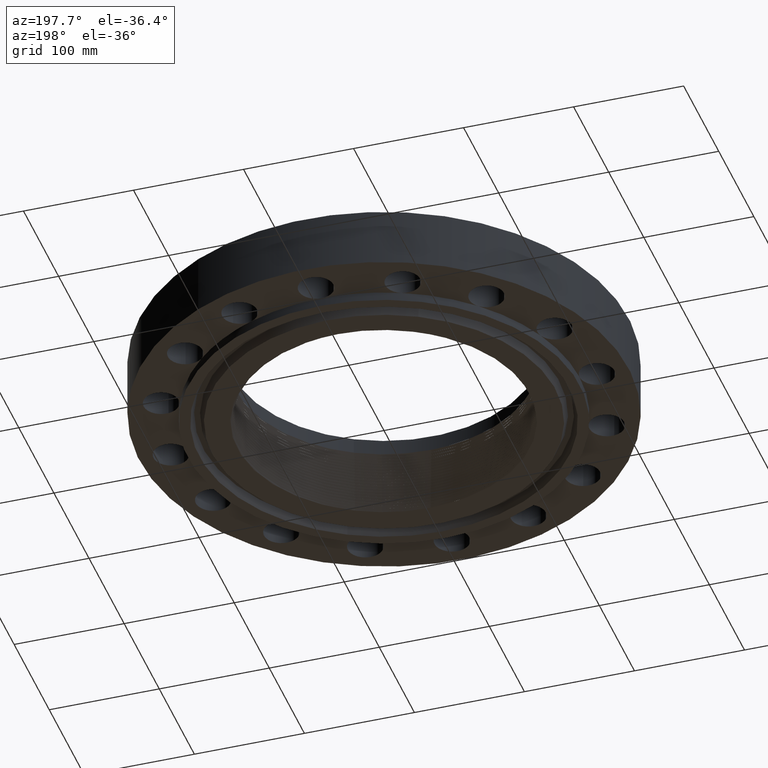
[diagram: clean part render]
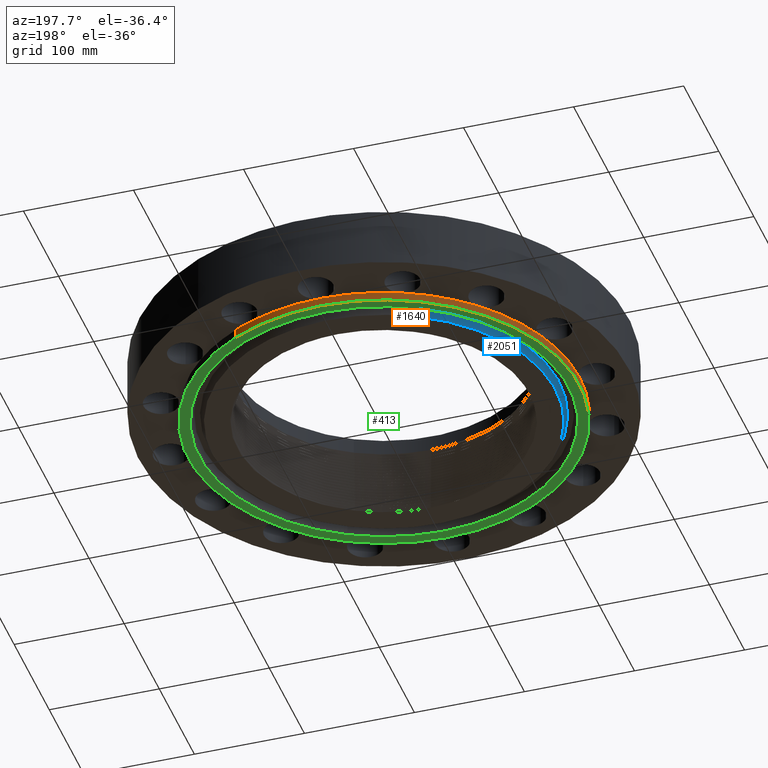
[diagram: same view with three faces highlighted in distinct colors, each labeled with its STEP entity id]
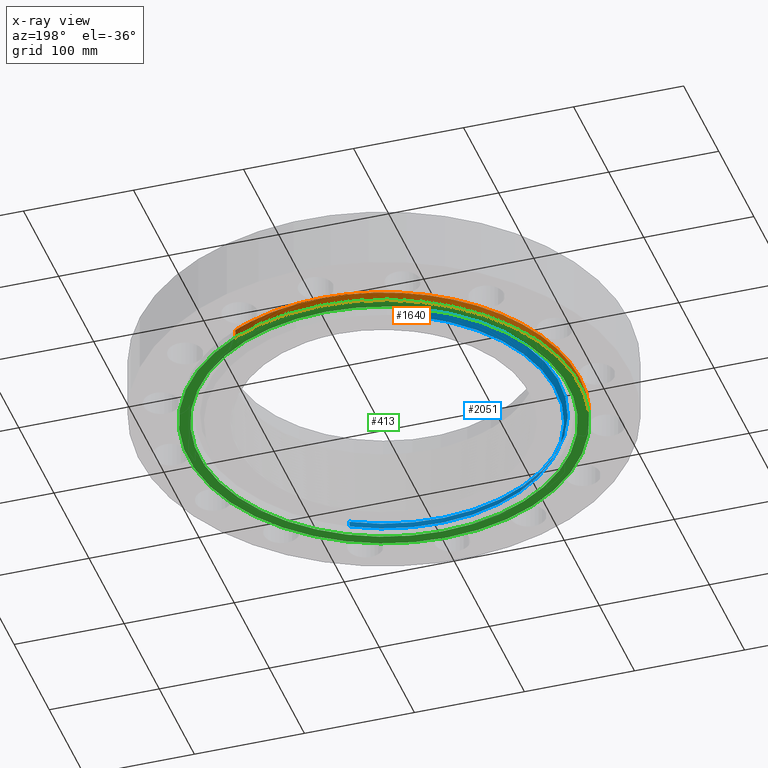
[diagram: x-ray of the same camera — body ghosted, the three highlighted faces saturated]
A machine part, auxiliary view with three faces highlighted in distinct colors.
The next image is the same camera in x-ray (body ghosted, the three faces saturated) — at least one of them is partly hidden behind the body in this view.
Their STEP definitions:

[orange] entity #1640 — the highlighted cylindrical surface (partial cylindrical patch) has radius 177.8 mm, axis along (0, 0, -1).
#388=AXIS2_PLACEMENT_3D('Circle Axis2P3D',#386,#387,$) ;
#1421=AXIS2_PLACEMENT_3D('Circle Axis2P3D',#1419,#1420,$) ;
#1426=AXIS2_PLACEMENT_3D('Circle Axis2P3D',#1424,#1425,$) ;
#1452=AXIS2_PLACEMENT_3D('Circle Axis2P3D',#1450,#1451,$) ;
#1457=AXIS2_PLACEMENT_3D('Circle Axis2P3D',#1455,#1456,$) ;
#1462=AXIS2_PLACEMENT_3D('Circle Axis2P3D',#1460,#1461,$) ;
#1467=AXIS2_PLACEMENT_3D('Circle Axis2P3D',#1465,#1466,$) ;
#1472=AXIS2_PLACEMENT_3D('Circle Axis2P3D',#1470,#1471,$) ;
#1477=AXIS2_PLACEMENT_3D('Circle Axis2P3D',#1475,#1476,$) ;
#1482=AXIS2_PLACEMENT_3D('Circle Axis2P3D',#1480,#1481,$) ;
#1599=AXIS2_PLACEMENT_3D('Cylinder Axis2P3D',#1596,#1597,#1598) ;
#381=CARTESIAN_POINT('Vertex',(3.35597877024,6.14307793326,-0.313000000001)) ;
#383=CARTESIAN_POINT('Vertex',(-3.35597877024,-6.14307793326,-0.313000000001)) ;
#386=CARTESIAN_POINT('Axis2P3D Location',(0.,0.,-0.313000000001)) ;
#562=CARTESIAN_POINT('Vertex',(-6.4671567276,-2.67878402657,0.)) ;
#822=CARTESIAN_POINT('Vertex',(-4.94974746833,4.94974746833,0.)) ;
#952=CARTESIAN_POINT('Vertex',(-4.94974746833,-4.94974746833,0.)) ;
#1017=CARTESIAN_POINT('Vertex',(-6.4671567276,2.67878402657,0.)) ;
#1082=CARTESIAN_POINT('Vertex',(-7.00000000003,-2.23792987641E-015,0.)) ;
#1147=CARTESIAN_POINT('Vertex',(2.67878402657,6.4671567276,0.)) ;
#1277=CARTESIAN_POINT('Vertex',(-2.67878402657,6.4671567276,0.)) ;
#1416=CARTESIAN_POINT('Vertex',(3.35597877024,6.14307793326,8.39223703654E-016)) ;
#1419=CARTESIAN_POINT('Axis2P3D Location',(0.,0.,0.)) ;
#1424=CARTESIAN_POINT('Axis2P3D Location',(0.,0.,0.)) ;
#1428=CARTESIAN_POINT('Vertex',(-3.00038465792E-015,7.00000000003,8.39223703654E-016)) ;
#1450=CARTESIAN_POINT('Axis2P3D Location',(0.,0.,0.)) ;
#1455=CARTESIAN_POINT('Axis2P3D Location',(0.,0.,0.)) ;
#1460=CARTESIAN_POINT('Axis2P3D Location',(0.,0.,0.)) ;
#1465=CARTESIAN_POINT('Axis2P3D Location',(0.,0.,0.)) ;
#1470=CARTESIAN_POINT('Axis2P3D Location',(0.,0.,0.)) ;
#1475=CARTESIAN_POINT('Axis2P3D Location',(0.,0.,0.)) ;
#1480=CARTESIAN_POINT('Axis2P3D Location',(0.,0.,0.)) ;
#1484=CARTESIAN_POINT('Vertex',(-3.35597877024,-6.14307793326,8.39223703654E-016)) ;
#1596=CARTESIAN_POINT('Axis2P3D Location',(0.,0.,1.28350000001)) ;
#1601=CARTESIAN_POINT('Line Origine',(3.35597877024,6.14307793326,-0.156500000001)) ;
#1606=CARTESIAN_POINT('Line Origine',(-3.35597877024,-6.14307793326,-0.156500000001)) ;
#387=DIRECTION('Axis2P3D Direction',(0.,0.,-0.0393700787402)) ;
#1420=DIRECTION('Axis2P3D Direction',(0.,0.,-0.0393700787402)) ;
#1425=DIRECTION('Axis2P3D Direction',(0.,0.,-0.0393700787402)) ;
#1451=DIRECTION('Axis2P3D Direction',(0.,0.,-0.0393700787402)) ;
#1456=DIRECTION('Axis2P3D Direction',(0.,0.,-0.0393700787402)) ;
#1461=DIRECTION('Axis2P3D Direction',(0.,0.,-0.0393700787402)) ;
#1466=DIRECTION('Axis2P3D Direction',(0.,0.,-0.0393700787402)) ;
#1471=DIRECTION('Axis2P3D Direction',(0.,0.,-0.0393700787402)) ;
#1476=DIRECTION('Axis2P3D Direction',(0.,0.,-0.0393700787402)) ;
#1481=DIRECTION('Axis2P3D Direction',(0.,0.,-0.0393700787402)) ;
#1597=DIRECTION('Axis2P3D Direction',(0.,0.,-0.0393700787402)) ;
#1598=DIRECTION('Axis2P3D XDirection',(-0.0188750212049,-0.0345504945626,0.)) ;
#1602=DIRECTION('Vector Direction',(0.,0.,-0.0393700787402)) ;
#1607=DIRECTION('Vector Direction',(0.,0.,-0.0393700787402)) ;
#1603=VECTOR('Line Direction',#1602,0.0393700787402) ;
#1608=VECTOR('Line Direction',#1607,0.0393700787402) ;
#1627=ORIENTED_EDGE('',*,*,#390,.F.) ;
#1628=ORIENTED_EDGE('',*,*,#1610,.T.) ;
#1629=ORIENTED_EDGE('',*,*,#1486,.T.) ;
#1630=ORIENTED_EDGE('',*,*,#1479,.T.) ;
#1631=ORIENTED_EDGE('',*,*,#1474,.T.) ;
#1632=ORIENTED_EDGE('',*,*,#1469,.T.) ;
#1633=ORIENTED_EDGE('',*,*,#1464,.T.) ;
#1634=ORIENTED_EDGE('',*,*,#1459,.T.) ;
#1635=ORIENTED_EDGE('',*,*,#1454,.T.) ;
#1636=ORIENTED_EDGE('',*,*,#1430,.T.) ;
#1637=ORIENTED_EDGE('',*,*,#1423,.T.) ;
#1638=ORIENTED_EDGE('',*,*,#1605,.F.) ;
#1640=ADVANCED_FACE('PartBody',(#1639),#1600,.T.) ;
#389=CIRCLE('generated circle',#388,7.00000000003) ;
#1422=CIRCLE('generated circle',#1421,7.00000000003) ;
#1427=CIRCLE('generated circle',#1426,7.00000000003) ;
#1453=CIRCLE('generated circle',#1452,7.00000000003) ;
#1458=CIRCLE('generated circle',#1457,7.00000000003) ;
#1463=CIRCLE('generated circle',#1462,7.00000000003) ;
#1468=CIRCLE('generated circle',#1467,7.00000000003) ;
#1473=CIRCLE('generated circle',#1472,7.00000000003) ;
#1478=CIRCLE('generated circle',#1477,7.00000000003) ;
#1483=CIRCLE('generated circle',#1482,7.00000000003) ;
#1600=CYLINDRICAL_SURFACE('generated cylinder',#1599,7.00000000003) ;
#390=EDGE_CURVE('',#384,#382,#389,.T.) ;
#1423=EDGE_CURVE('',#1148,#1417,#1422,.T.) ;
#1430=EDGE_CURVE('',#1429,#1148,#1427,.T.) ;
#1454=EDGE_CURVE('',#1278,#1429,#1453,.T.) ;
#1459=EDGE_CURVE('',#823,#1278,#1458,.T.) ;
#1464=EDGE_CURVE('',#1018,#823,#1463,.T.) ;
#1469=EDGE_CURVE('',#1083,#1018,#1468,.T.) ;
#1474=EDGE_CURVE('',#563,#1083,#1473,.T.) ;
#1479=EDGE_CURVE('',#953,#563,#1478,.T.) ;
#1486=EDGE_CURVE('',#1485,#953,#1483,.T.) ;
#1605=EDGE_CURVE('',#382,#1417,#1604,.F.) ;
#1610=EDGE_CURVE('',#384,#1485,#1609,.F.) ;
#1626=EDGE_LOOP('',(#1627,#1628,#1629,#1630,#1631,#1632,#1633,#1634,#1635,#1636,#1637,#1638)) ;
#1639=FACE_OUTER_BOUND('',#1626,.T.) ;
#1604=LINE('Line',#1601,#1603) ;
#1609=LINE('Line',#1606,#1608) ;
#382=VERTEX_POINT('',#381) ;
#384=VERTEX_POINT('',#383) ;
#563=VERTEX_POINT('',#562) ;
#823=VERTEX_POINT('',#822) ;
#953=VERTEX_POINT('',#952) ;
#1018=VERTEX_POINT('',#1017) ;
#1083=VERTEX_POINT('',#1082) ;
#1148=VERTEX_POINT('',#1147) ;
#1278=VERTEX_POINT('',#1277) ;
#1417=VERTEX_POINT('',#1416) ;
#1429=VERTEX_POINT('',#1428) ;
#1485=VERTEX_POINT('',#1484) ;

[blue] entity #2051 — the highlighted conical surface has half-angle 23 deg.
#202=AXIS2_PLACEMENT_3D('Circle Axis2P3D',#200,#201,$) ;
#2013=AXIS2_PLACEMENT_3D('Circle Axis2P3D',#2011,#2012,$) ;
#2026=AXIS2_PLACEMENT_3D('Cone Axis2P3D',#2023,#2024,#2025) ;
#195=CARTESIAN_POINT('Vertex',(-2.94391251981,5.38879572131,-0.313000000001)) ;
#197=CARTESIAN_POINT('Vertex',(2.94391251981,-5.38879572131,-0.313000000001)) ;
#200=CARTESIAN_POINT('Axis2P3D Location',(1.1189649382E-015,1.39870617276E-016,-0.313000000001)) ;
#1989=CARTESIAN_POINT('Vertex',(3.0037656434,-5.49835612915,-0.0188873350169)) ;
#1996=CARTESIAN_POINT('Vertex',(-3.0037656434,5.49835612915,-0.0188873350169)) ;
#2011=CARTESIAN_POINT('Axis2P3D Location',(0.,0.,-0.0188873350169)) ;
#2023=CARTESIAN_POINT('Axis2P3D Location',(0.,0.,-0.373000000001)) ;
#2028=CARTESIAN_POINT('Line Origine',(-2.97383908161,5.44357592523,-0.165943667509)) ;
#2033=CARTESIAN_POINT('Line Origine',(2.97383908161,-5.44357592523,-0.165943667509)) ;
#201=DIRECTION('Axis2P3D Direction',(0.,0.,-0.0393700787402)) ;
#2012=DIRECTION('Axis2P3D Direction',(0.,0.,0.0393700787402)) ;
#2024=DIRECTION('Axis2P3D Direction',(0.,0.,0.0393700787402)) ;
#2025=DIRECTION('Axis2P3D XDirection',(-0.0188750212049,0.0345504945626,0.)) ;
#2029=DIRECTION('Vector Direction',(-0.00737505833565,0.0134999537303,0.0362403485611)) ;
#2034=DIRECTION('Vector Direction',(0.00737505833565,-0.0134999537303,0.0362403485611)) ;
#2030=VECTOR('Line Direction',#2029,0.0393700787402) ;
#2035=VECTOR('Line Direction',#2034,0.0393700787402) ;
#2046=ORIENTED_EDGE('',*,*,#2037,.F.) ;
#2047=ORIENTED_EDGE('',*,*,#2015,.F.) ;
#2048=ORIENTED_EDGE('',*,*,#2032,.T.) ;
#2049=ORIENTED_EDGE('',*,*,#204,.F.) ;
#2051=ADVANCED_FACE('PartBody',(#2050),#2027,.T.) ;
#203=CIRCLE('generated circle',#202,6.14050000002) ;
#2014=CIRCLE('generated circle',#2013,6.26534341944) ;
#2027=CONICAL_SURFACE('Cone',#2026,6.11503151105,0.401425727959) ;
#204=EDGE_CURVE('',#198,#196,#203,.T.) ;
#2015=EDGE_CURVE('',#1997,#1990,#2014,.T.) ;
#2032=EDGE_CURVE('',#1997,#196,#2031,.F.) ;
#2037=EDGE_CURVE('',#1990,#198,#2036,.F.) ;
#2045=EDGE_LOOP('',(#2046,#2047,#2048,#2049)) ;
#2050=FACE_OUTER_BOUND('',#2045,.T.) ;
#2031=LINE('Line',#2028,#2030) ;
#2036=LINE('Line',#2033,#2035) ;
#196=VERTEX_POINT('',#195) ;
#198=VERTEX_POINT('',#197) ;
#1990=VERTEX_POINT('',#1989) ;
#1997=VERTEX_POINT('',#1996) ;

[green] entity #413 — the highlighted planar face has unit normal (0, 0, -1).
#189=AXIS2_PLACEMENT_3D('Plane Axis2P3D',#186,#187,#188) ;
#379=AXIS2_PLACEMENT_3D('Circle Axis2P3D',#377,#378,$) ;
#388=AXIS2_PLACEMENT_3D('Circle Axis2P3D',#386,#387,$) ;
#397=AXIS2_PLACEMENT_3D('Circle Axis2P3D',#395,#396,$) ;
#406=AXIS2_PLACEMENT_3D('Circle Axis2P3D',#404,#405,$) ;
#186=CARTESIAN_POINT('Axis2P3D Location',(0.,0.,-0.313000000001)) ;
#377=CARTESIAN_POINT('Axis2P3D Location',(0.,0.,-0.313000000001)) ;
#381=CARTESIAN_POINT('Vertex',(3.35597877024,6.14307793326,-0.313000000001)) ;
#383=CARTESIAN_POINT('Vertex',(-3.35597877024,-6.14307793326,-0.313000000001)) ;
#386=CARTESIAN_POINT('Axis2P3D Location',(0.,0.,-0.313000000001)) ;
#395=CARTESIAN_POINT('Axis2P3D Location',(-1.67844740731E-015,-2.23792987641E-015,-0.313000000001)) ;
#399=CARTESIAN_POINT('Vertex',(3.16876309742,-5.80038194284,-0.313000000001)) ;
#401=CARTESIAN_POINT('Vertex',(-3.16876309742,5.80038194284,-0.313000000001)) ;
#404=CARTESIAN_POINT('Axis2P3D Location',(0.,-5.59482469102E-016,-0.313000000001)) ;
#187=DIRECTION('Axis2P3D Direction',(0.,0.,-0.0393700787402)) ;
#188=DIRECTION('Axis2P3D XDirection',(0.0393700787402,0.,0.)) ;
#378=DIRECTION('Axis2P3D Direction',(0.,0.,-0.0393700787402)) ;
#387=DIRECTION('Axis2P3D Direction',(0.,0.,-0.0393700787402)) ;
#396=DIRECTION('Axis2P3D Direction',(0.,0.,-0.0393700787402)) ;
#405=DIRECTION('Axis2P3D Direction',(0.,0.,-0.0393700787402)) ;
#392=ORIENTED_EDGE('',*,*,#385,.T.) ;
#393=ORIENTED_EDGE('',*,*,#390,.T.) ;
#410=ORIENTED_EDGE('',*,*,#403,.F.) ;
#411=ORIENTED_EDGE('',*,*,#408,.F.) ;
#412=FACE_BOUND('',#409,.T.) ;
#413=ADVANCED_FACE('PartBody',(#394,#412),#190,.T.) ;
#380=CIRCLE('generated circle',#379,7.00000000003) ;
#389=CIRCLE('generated circle',#388,7.00000000003) ;
#398=CIRCLE('generated circle',#397,6.60950000003) ;
#407=CIRCLE('generated circle',#406,6.60950000003) ;
#385=EDGE_CURVE('',#382,#384,#380,.T.) ;
#390=EDGE_CURVE('',#384,#382,#389,.T.) ;
#403=EDGE_CURVE('',#400,#402,#398,.T.) ;
#408=EDGE_CURVE('',#402,#400,#407,.T.) ;
#391=EDGE_LOOP('',(#392,#393)) ;
#409=EDGE_LOOP('',(#410,#411)) ;
#394=FACE_OUTER_BOUND('',#391,.T.) ;
#190=PLANE('',#189) ;
#382=VERTEX_POINT('',#381) ;
#384=VERTEX_POINT('',#383) ;
#400=VERTEX_POINT('',#399) ;
#402=VERTEX_POINT('',#401) ;